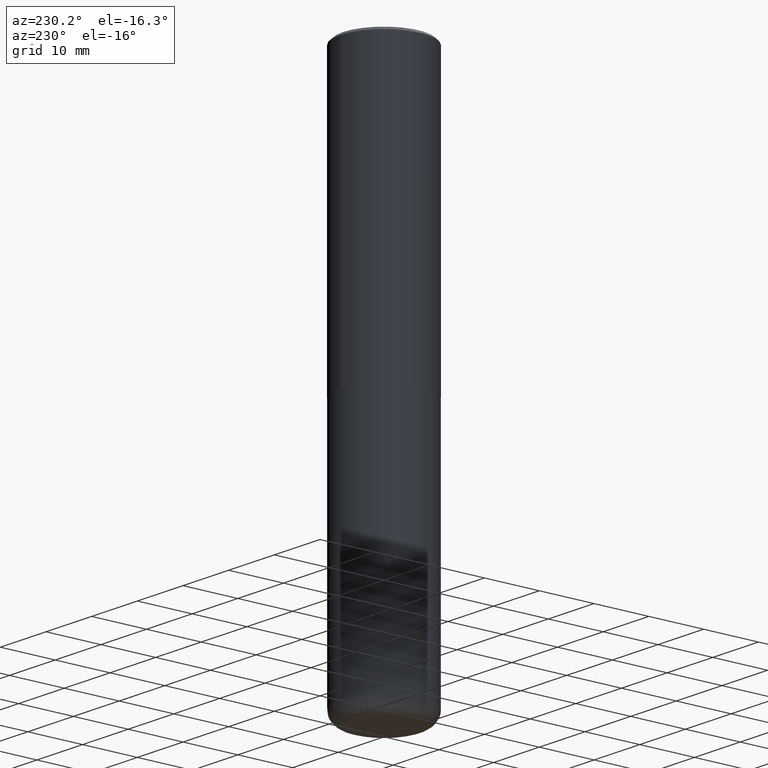
[diagram: clean part render]
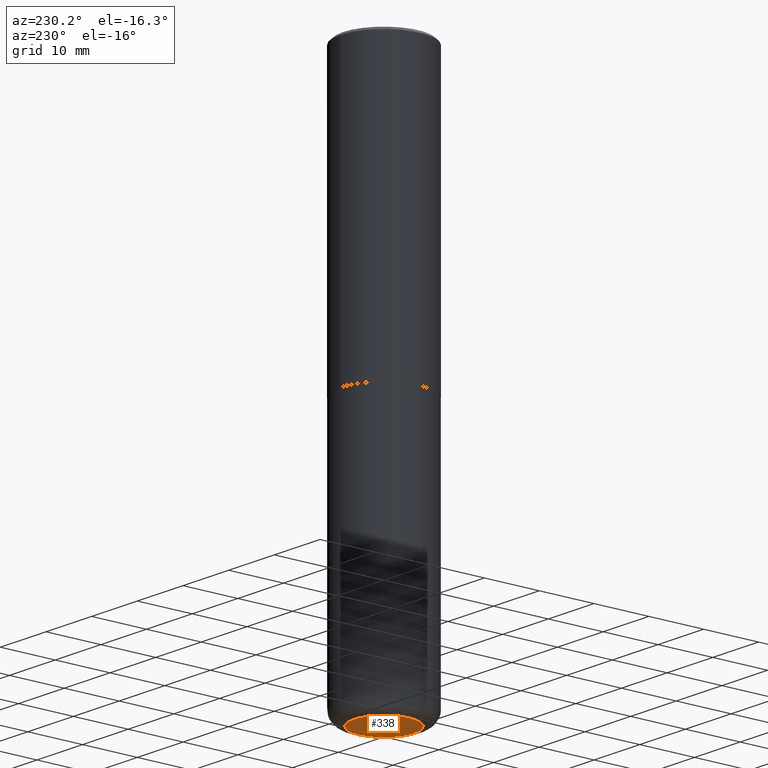
[diagram: same view with one face highlighted and labeled with its STEP entity id]
A machine part, auxiliary view. The second image highlights one B-rep face of the part: STEP entity #338.
In plain terms, the highlighted planar face has unit normal (0, -0, -1).
Its self-contained STEP definition (entity closure, byte-faithful):
#26 = VERTEX_POINT ( 'NONE', #369 ) ;
#33 = CARTESIAN_POINT ( 'NONE',  ( 9.627810689950881427E-29, -1.374596203102546184E-14, -3.936999999999999389 ) ) ;
#53 = DIRECTION ( 'NONE',  ( 1.000000000000000000, -6.982962677686264344E-15, 0.000000000000000000 ) ) ;
#56 = AXIS2_PLACEMENT_3D ( 'NONE', #250, #340, #255 ) ;
#100 = EDGE_CURVE ( 'NONE', #174, #26, #295, .T. ) ;
#109 = EDGE_CURVE ( 'NONE', #26, #174, #229, .T. ) ;
#122 = AXIS2_PLACEMENT_3D ( 'NONE', #33, #196, #396 ) ;
#163 = FACE_OUTER_BOUND ( 'NONE', #312, .T. ) ;
#174 = VERTEX_POINT ( 'NONE', #239 ) ;
#196 = DIRECTION ( 'NONE',  ( -2.445468806185136597E-29, 3.491481338843145583E-15, 1.000000000000000000 ) ) ;
#229 = CIRCLE ( 'NONE', #279, 0.2165500000000000203 ) ;
#235 = CARTESIAN_POINT ( 'NONE',  ( 9.627810689950881427E-29, -1.374596203102546184E-14, -3.936999999999999389 ) ) ;
#239 = CARTESIAN_POINT ( 'NONE',  ( 0.2165500000000000203, -1.525812259887842266E-14, -3.936999999999999389 ) ) ;
#245 = DIRECTION ( 'NONE',  ( -2.445468806185136597E-29, 3.491481338843145583E-15, 1.000000000000000000 ) ) ;
#250 = CARTESIAN_POINT ( 'NONE',  ( 1.656420021577714822E-28, -3.812657435268170484E-15, -3.937000000000000277 ) ) ;
#255 = DIRECTION ( 'NONE',  ( -1.000000000000000000, 6.982962677686265922E-15, -4.876176775795935793E-29 ) ) ;
#279 = AXIS2_PLACEMENT_3D ( 'NONE', #235, #245, #53 ) ;
#295 = CIRCLE ( 'NONE', #122, 0.2165500000000000203 ) ;
#309 = PLANE ( 'NONE',  #56 ) ;
#312 = EDGE_LOOP ( 'NONE', ( #329, #330 ) ) ;
#329 = ORIENTED_EDGE ( 'NONE', *, *, #100, .F. ) ;
#330 = ORIENTED_EDGE ( 'NONE', *, *, #109, .F. ) ;
#338 = ADVANCED_FACE ( 'NONE', ( #163 ), #309, .T. ) ;
#340 = DIRECTION ( 'NONE',  ( 2.438088387897960049E-29, -3.491481338843145188E-15, -1.000000000000000000 ) ) ;
#369 = CARTESIAN_POINT ( 'NONE',  ( -0.2165500000000000203, -1.168591382887191382E-14, -3.936999999999999389 ) ) ;
#396 = DIRECTION ( 'NONE',  ( 1.000000000000000000, -6.982962677686264344E-15, 0.000000000000000000 ) ) ;